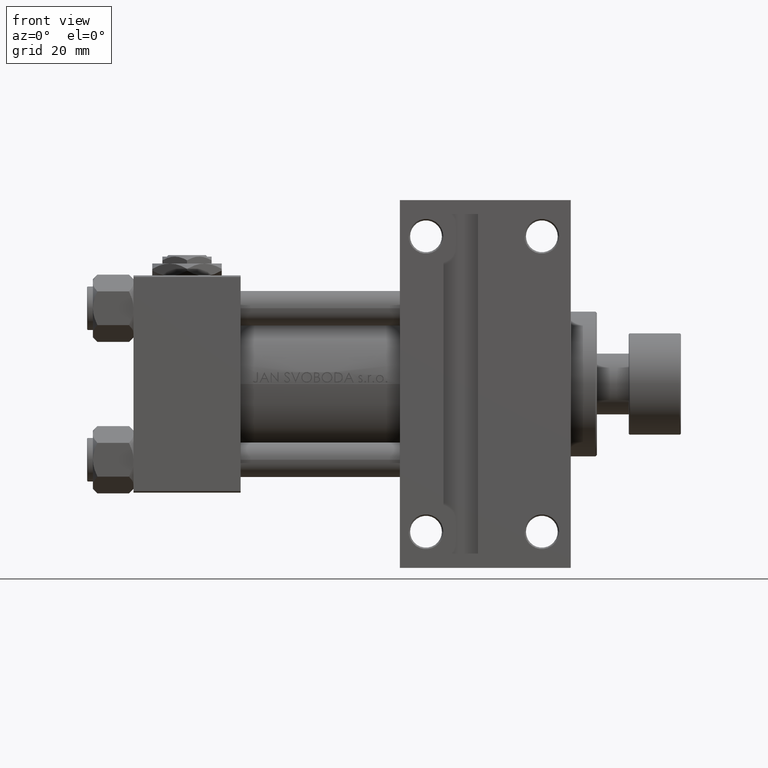
[diagram: clean part render]
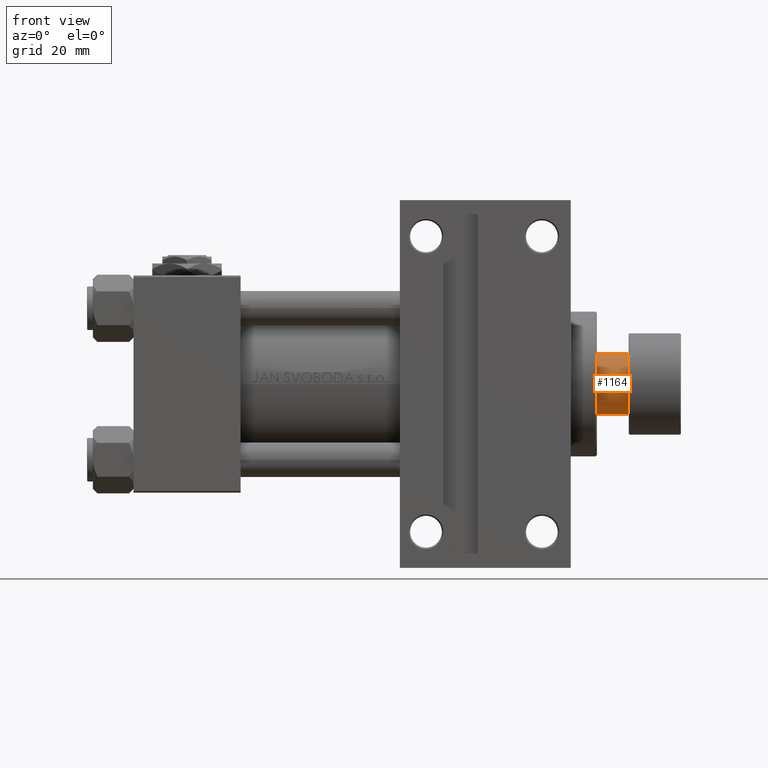
[diagram: same view with one face highlighted and labeled with its STEP entity id]
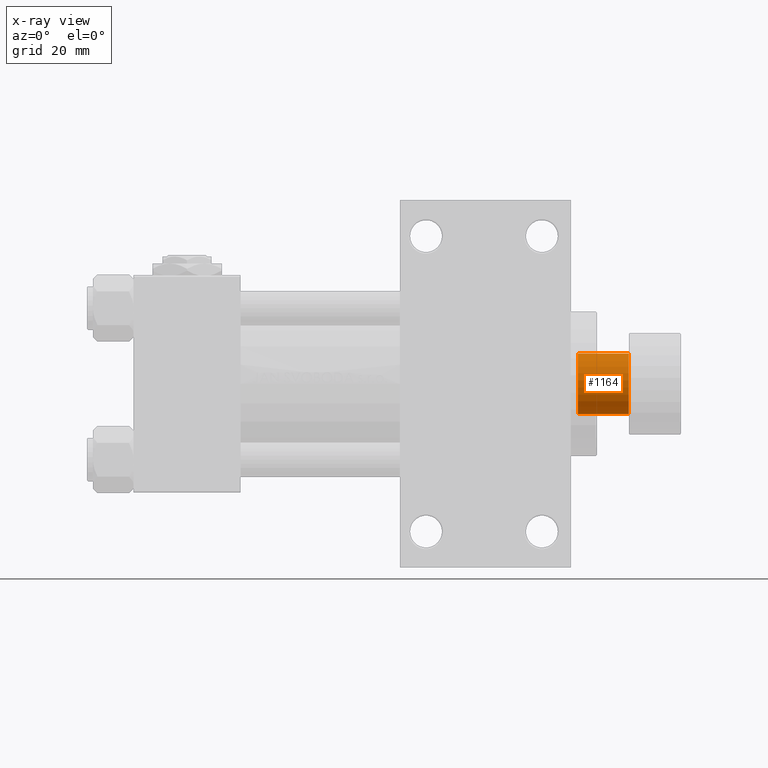
[diagram: x-ray of the same camera — body ghosted, the highlighted face saturated]
A machine part, front view. The second image highlights one B-rep face of the part: STEP entity #1164.
The next image is the same camera in x-ray: the body ghosted, the highlighted face saturated — about 0% of this face is hidden behind the body in this view.
In plain terms, the highlighted cylindrical surface (edge-blend (fillet) strip) has radius 10.5 mm, axis along (1, 0, 0).
Its self-contained STEP definition (entity closure, byte-faithful):
#719 = ORIENTED_EDGE ( 'NONE', *, *, #9366, .F. ) ;
#1164 = ADVANCED_FACE ( 'NONE', ( #41421 ), #14528, .T. ) ;
#1893 = ORIENTED_EDGE ( 'NONE', *, *, #27454, .T. ) ;
#2057 = CIRCLE ( 'NONE', #32251, 10.50000000000000000 ) ;
#3116 = CARTESIAN_POINT ( 'NONE',  ( -10.50000000000000000, 1.285879139104720831E-15, -18.00000000000000000 ) ) ;
#4018 = VECTOR ( 'NONE', #41976, 1000.000000000000000 ) ;
#5614 = CARTESIAN_POINT ( 'NONE',  ( 10.50000000000000000, 0.000000000000000000, -35.50000000000000711 ) ) ;
#5815 = DIRECTION ( 'NONE',  ( 0.000000000000000000, 0.000000000000000000, -1.000000000000000000 ) ) ;
#7036 = DIRECTION ( 'NONE',  ( -0.000000000000000000, -0.000000000000000000, 1.000000000000000000 ) ) ;
#9366 = EDGE_CURVE ( 'NONE', #41389, #14991, #2057, .T. ) ;
#10720 = DIRECTION ( 'NONE',  ( -0.000000000000000000, -0.000000000000000000, 1.000000000000000000 ) ) ;
#10820 = CARTESIAN_POINT ( 'NONE',  ( -10.50000000000000000, 1.285879139104720831E-15, -35.50000000000000711 ) ) ;
#11493 = EDGE_LOOP ( 'NONE', ( #45593, #719, #21549, #1893 ) ) ;
#14528 = CYLINDRICAL_SURFACE ( 'NONE', #21347, 10.50000000000000000 ) ;
#14991 = VERTEX_POINT ( 'NONE', #23252 ) ;
#19358 = DIRECTION ( 'NONE',  ( 0.000000000000000000, 0.000000000000000000, -1.000000000000000000 ) ) ;
#21347 = AXIS2_PLACEMENT_3D ( 'NONE', #29993, #10720, #26185 ) ;
#21549 = ORIENTED_EDGE ( 'NONE', *, *, #35037, .T. ) ;
#23252 = CARTESIAN_POINT ( 'NONE',  ( -10.50000000000000000, 1.285879139104720831E-15, -35.50000000000000711 ) ) ;
#24256 = VERTEX_POINT ( 'NONE', #30665 ) ;
#25753 = CIRCLE ( 'NONE', #35497, 10.50000000000000000 ) ;
#26185 = DIRECTION ( 'NONE',  ( 1.000000000000000000, 0.000000000000000000, 0.000000000000000000 ) ) ;
#27454 = EDGE_CURVE ( 'NONE', #24256, #42641, #25753, .T. ) ;
#27469 = CARTESIAN_POINT ( 'NONE',  ( 0.000000000000000000, 0.000000000000000000, -18.00000000000000000 ) ) ;
#29993 = CARTESIAN_POINT ( 'NONE',  ( 0.000000000000000000, 0.000000000000000000, -35.50000000000000711 ) ) ;
#30089 = LINE ( 'NONE', #10820, #46947 ) ;
#30665 = CARTESIAN_POINT ( 'NONE',  ( 10.50000000000000000, 0.000000000000000000, -18.00000000000000000 ) ) ;
#32186 = DIRECTION ( 'NONE',  ( -1.000000000000000000, 0.000000000000000000, 0.000000000000000000 ) ) ;
#32251 = AXIS2_PLACEMENT_3D ( 'NONE', #47432, #5815, #32186 ) ;
#34155 = EDGE_CURVE ( 'NONE', #14991, #42641, #30089, .T. ) ;
#34612 = CARTESIAN_POINT ( 'NONE',  ( 10.50000000000000000, 0.000000000000000000, -35.50000000000000711 ) ) ;
#35037 = EDGE_CURVE ( 'NONE', #41389, #24256, #41733, .T. ) ;
#35497 = AXIS2_PLACEMENT_3D ( 'NONE', #27469, #19358, #46001 ) ;
#41389 = VERTEX_POINT ( 'NONE', #5614 ) ;
#41421 = FACE_OUTER_BOUND ( 'NONE', #11493, .T. ) ;
#41733 = LINE ( 'NONE', #34612, #4018 ) ;
#41976 = DIRECTION ( 'NONE',  ( -0.000000000000000000, -0.000000000000000000, 1.000000000000000000 ) ) ;
#42641 = VERTEX_POINT ( 'NONE', #3116 ) ;
#45593 = ORIENTED_EDGE ( 'NONE', *, *, #34155, .F. ) ;
#46001 = DIRECTION ( 'NONE',  ( -1.000000000000000000, 0.000000000000000000, 0.000000000000000000 ) ) ;
#46947 = VECTOR ( 'NONE', #7036, 1000.000000000000000 ) ;
#47432 = CARTESIAN_POINT ( 'NONE',  ( 0.000000000000000000, 0.000000000000000000, -35.50000000000000711 ) ) ;